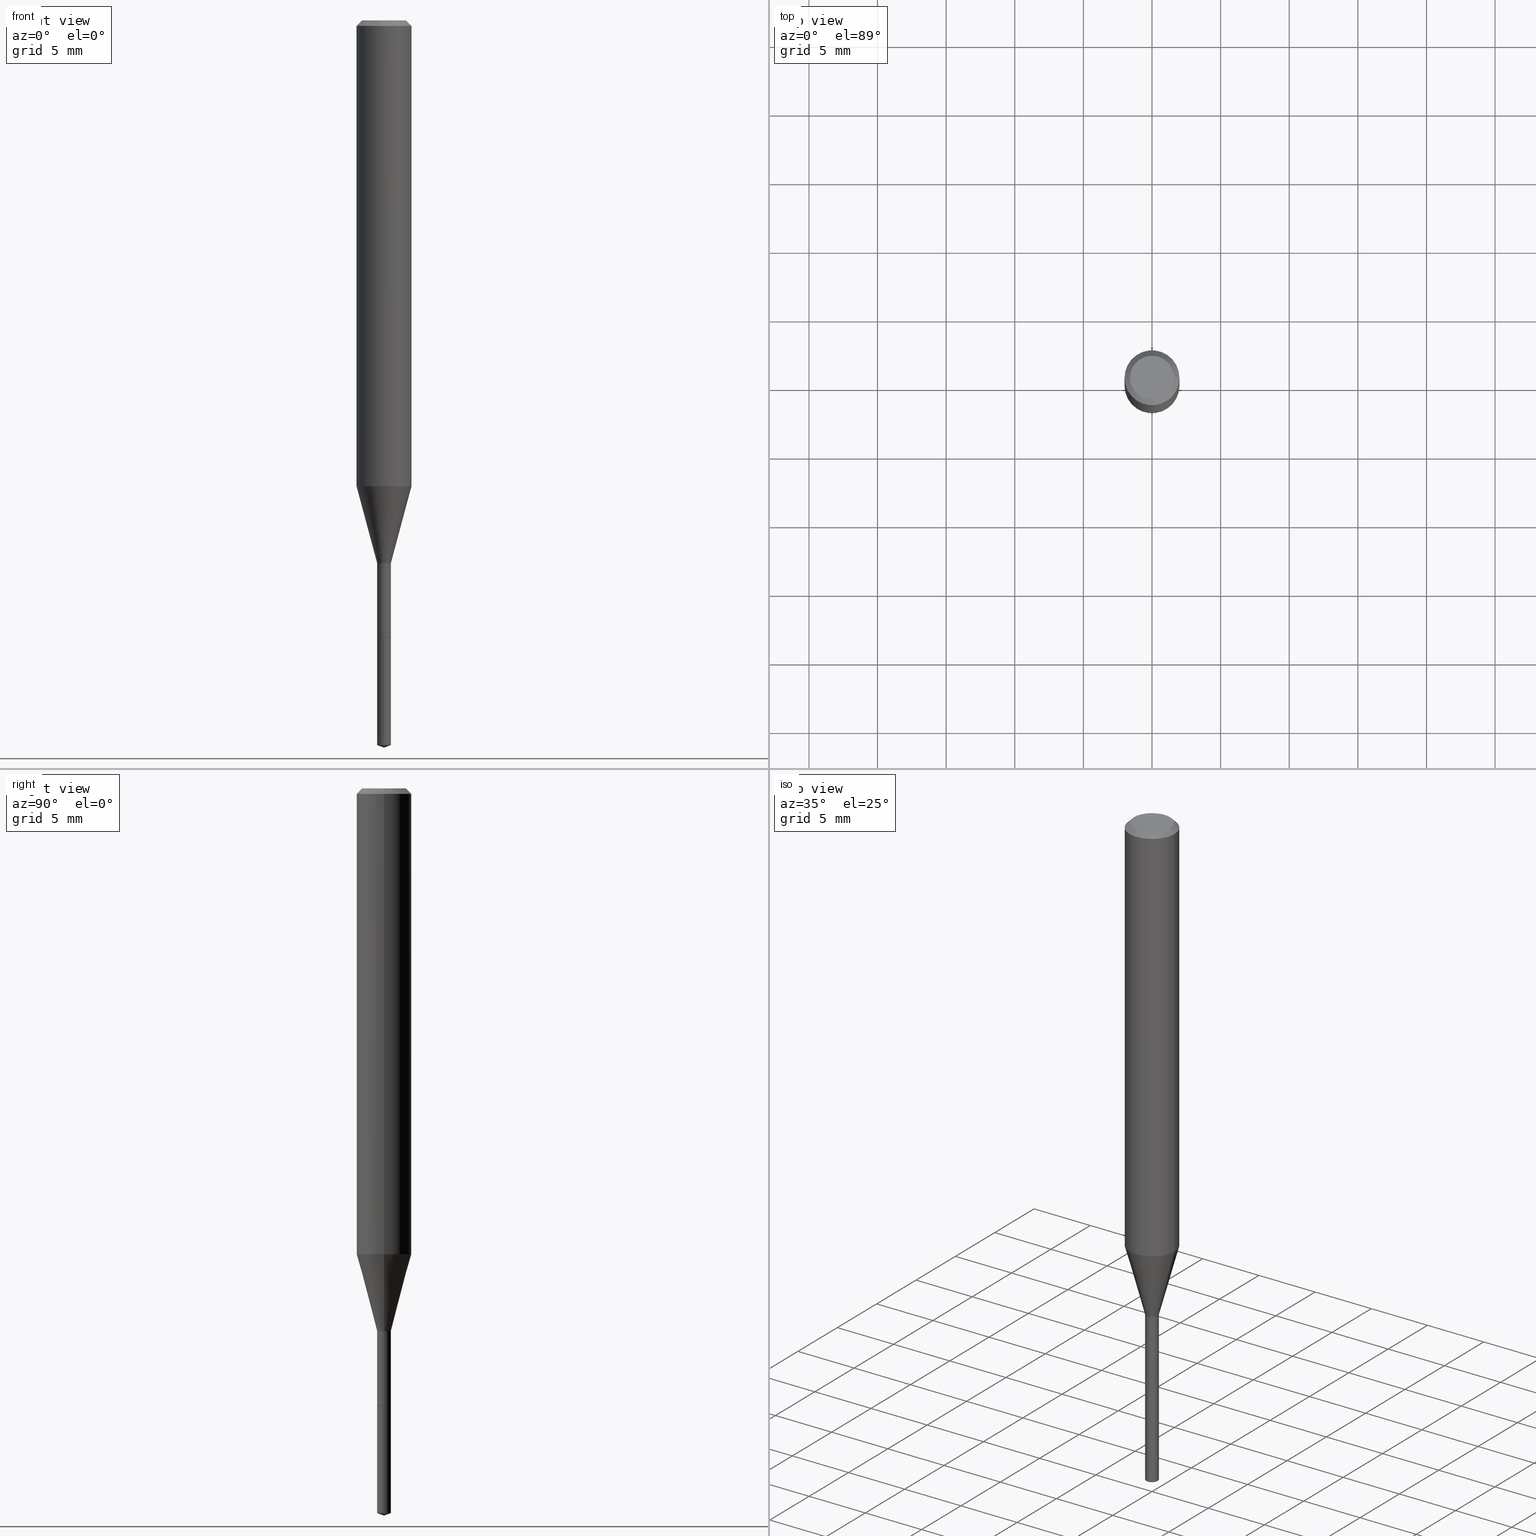
[diagram: canonical four-view strip — front | top / right | iso, engineering-drawing reading convention]
A machine part, canonical four-view strip (front | top / right | iso — engineering-drawing reading convention). The complete STEP part file that produces these views, byte-faithful:
ISO-10303-21;
HEADER;
FILE_DESCRIPTION (( 'STEP AP203' ),
    '1' );
FILE_NAME ('06000.STEP',
    '2024-04-23T18:59:22',
    ( '' ),
    ( '' ),
    'SwSTEP 2.0',
    'SolidWorks 2023',
    '' );
FILE_SCHEMA (( 'CONFIG_CONTROL_DESIGN' ));
ENDSEC;

DATA;
#1 = VERTEX_POINT ( 'NONE', #255 ) ;
#2 = DIRECTION ( 'NONE',  ( 1.000000000000000000, -6.982962677686267499E-15, 4.876176775795935232E-29 ) ) ;
#3 = DIRECTION ( 'NONE',  ( -2.447544919143617491E-29, 3.488508226921589715E-15, 1.000000000000000000 ) ) ;
#4 = ORIENTED_EDGE ( 'NONE', *, *, #393, .F. ) ;
#5 = ADVANCED_FACE ( 'NONE', ( #67 ), #80, .F. ) ;
#6 = CARTESIAN_POINT ( 'NONE',  ( 5.085819766665152108E-29, -7.259375082189951371E-15, -2.079429786384956014 ) ) ;
#7 = ORIENTED_EDGE ( 'NONE', *, *, #320, .F. ) ;
#8 = CIRCLE ( 'NONE', #282, 0.01969999999999999876 ) ;
#9 = AXIS2_PLACEMENT_3D ( 'NONE', #178, #222, #419 ) ;
#10 = FACE_OUTER_BOUND ( 'NONE', #39, .T. ) ;
#11 = AXIS2_PLACEMENT_3D ( 'NONE', #40, #3, #82 ) ;
#12 = CARTESIAN_POINT ( 'NONE',  ( 3.807839478110876143E-29, -5.436585592712660984E-15, -1.557099999999999929 ) ) ;
#13 = VERTEX_POINT ( 'NONE', #350 ) ;
#14 = EDGE_CURVE ( 'NONE', #76, #116, #377, .T. ) ;
#15 = CARTESIAN_POINT ( 'NONE',  ( 5.085819766665152108E-29, -7.259375082189951371E-15, -2.079429786384956014 ) ) ;
#16 = EDGE_LOOP ( 'NONE', ( #398, #471, #380, #194 ) ) ;
#17 = VECTOR ( 'NONE', #316, 39.37007874015748854 ) ;
#18 = CC_DESIGN_PERSON_AND_ORGANIZATION_ASSIGNMENT ( #439, #481, ( #440 ) ) ;
#19 = ORIENTED_EDGE ( 'NONE', *, *, #303, .T. ) ;
#20 =( CONVERSION_BASED_UNIT ( 'INCH', #244 ) LENGTH_UNIT ( ) NAMED_UNIT ( #322 ) );
#21 = ORIENTED_EDGE ( 'NONE', *, *, #154, .T. ) ;
#22 = AXIS2_PLACEMENT_3D ( 'NONE', #12, #351, #190 ) ;
#23 = LINE ( 'NONE', #165, #473 ) ;
#24 = CYLINDRICAL_SURFACE ( 'NONE', #147, 0.01969999999999999876 ) ;
#25 = PERSON_AND_ORGANIZATION_ROLE ( 'design_owner' ) ;
#26 = DIRECTION ( 'NONE',  ( -2.445468806185136597E-29, 3.491481338843145583E-15, 1.000000000000000000 ) ) ;
#27 = CIRCLE ( 'NONE', #438, 0.01969999999999999876 ) ;
#28 = APPROVAL_DATE_TIME ( #478, #238 ) ;
#29 = DIRECTION ( 'NONE',  ( 1.000000000000000000, -6.982962677686267499E-15, 0.000000000000000000 ) ) ;
#30 = DIRECTION ( 'NONE',  ( -6.982962677686265133E-15, -1.000000000000000000, 0.000000000000000000 ) ) ;
#31 = ORIENTED_EDGE ( 'NONE', *, *, #235, .F. ) ;
#32 = CARTESIAN_POINT ( 'NONE',  ( 3.851613369741614799E-31, -5.499083108677989540E-17, -0.01575000000000010072 ) ) ;
#33 = EDGE_CURVE ( 'NONE', #388, #144, #487, .T. ) ;
#34 = AXIS2_PLACEMENT_3D ( 'NONE', #330, #443, #293 ) ;
#35 = DIRECTION ( 'NONE',  ( -2.445468806185136877E-29, 3.491481338843145188E-15, 1.000000000000000000 ) ) ;
#36 = DIRECTION ( 'NONE',  ( -2.445468806185136597E-29, 3.491481338843145583E-15, 1.000000000000000000 ) ) ;
#37 = DESIGN_CONTEXT ( 'detailed design', #411, 'design' ) ;
#38 = ADVANCED_FACE ( 'NONE', ( #142 ), #221, .T. ) ;
#39 = EDGE_LOOP ( 'NONE', ( #394, #51, #429, #299 ) ) ;
#40 = CARTESIAN_POINT ( 'NONE',  ( 4.332392537037587642E-29, -6.185508339894515992E-15, -1.771599999999999842 ) ) ;
#41 = EDGE_LOOP ( 'NONE', ( #83, #89, #121, #87 ) ) ;
#42 = DIRECTION ( 'NONE',  ( 1.000000000000000000, -6.982962677686253300E-15, 0.000000000000000000 ) ) ;
#43 = AXIS2_PLACEMENT_3D ( 'NONE', #6, #355, #81 ) ;
#44 = CARTESIAN_POINT ( 'NONE',  ( -0.01969999999999997101, -5.670197177024139216E-15, -1.557099999999999929 ) ) ;
#45 = ORIENTED_EDGE ( 'NONE', *, *, #386, .T. ) ;
#46 = DIRECTION ( 'NONE',  ( 1.000000000000000000, -6.982962677686253300E-15, 0.000000000000000000 ) ) ;
#47 = EDGE_LOOP ( 'NONE', ( #357, #466, #103, #7 ) ) ;
#48 = VERTEX_POINT ( 'NONE', #281 ) ;
#49 = ORIENTED_EDGE ( 'NONE', *, *, #33, .F. ) ;
#50 = DIRECTION ( 'NONE',  ( -6.982962677686265133E-15, -1.000000000000000000, 0.000000000000000000 ) ) ;
#51 = ORIENTED_EDGE ( 'NONE', *, *, #320, .T. ) ;
#52 = FACE_OUTER_BOUND ( 'NONE', #47, .T. ) ;
#53 = DIRECTION ( 'NONE',  ( -2.445468806185136597E-29, 3.491481338843145583E-15, 1.000000000000000000 ) ) ;
#54 = VECTOR ( 'NONE', #228, 39.37007874015748143 ) ;
#55 = AXIS2_PLACEMENT_3D ( 'NONE', #401, #404, #295 ) ;
#56 = CARTESIAN_POINT ( 'NONE',  ( 4.713871149261278955E-47, -6.730158695841834933E-33, -1.927594061857933439E-18 ) ) ;
#57 = CARTESIAN_POINT ( 'NONE',  ( 5.099691144850582982E-29, -7.289655596455045472E-15, -2.086599999999999788 ) ) ;
#58 = DATE_TIME_ROLE ( 'creation_date' ) ;
#59 = DIRECTION ( 'NONE',  ( 1.000000000000000000, -6.982962677686288799E-15, 0.000000000000000000 ) ) ;
#60 = PERSON_AND_ORGANIZATION ( #127, #284 ) ;
#61 = PRODUCT ( '06000', '06000', '', ( #63 ) ) ;
#62 = EDGE_CURVE ( 'NONE', #156, #122, #27, .T. ) ;
#63 = MECHANICAL_CONTEXT ( 'NONE', #389, 'mechanical' ) ;
#64 = CARTESIAN_POINT ( 'NONE',  ( -9.125666700018876655E-28, 1.300584551482153368E-13, 37.28347874015748431 ) ) ;
#65 = CIRCLE ( 'NONE', #118, 0.01969999999999999876 ) ;
#66 = SECURITY_CLASSIFICATION_LEVEL ( 'unclassified' ) ;
#67 = FACE_OUTER_BOUND ( 'NONE', #435, .T. ) ;
#68 = PLANE ( 'NONE',  #77 ) ;
#69 = CARTESIAN_POINT ( 'NONE',  ( 3.807839478110876143E-29, -5.436585592712660984E-15, -1.557099999999999929 ) ) ;
#70 = SHAPE_DEFINITION_REPRESENTATION ( #409, #340 ) ;
#71 = DIRECTION ( 'NONE',  ( 1.000000000000000000, -6.982962677686265922E-15, 4.876176775795935793E-29 ) ) ;
#72 = FACE_OUTER_BOUND ( 'NONE', #358, .T. ) ;
#73 = DIRECTION ( 'NONE',  ( -0.7071067811866199593, 7.493145998870616062E-15, 0.7071067811864750752 ) ) ;
#74 = FACE_OUTER_BOUND ( 'NONE', #41, .T. ) ;
#75 = EDGE_CURVE ( 'NONE', #160, #183, #274, .T. ) ;
#76 = VERTEX_POINT ( 'NONE', #472 ) ;
#77 = AXIS2_PLACEMENT_3D ( 'NONE', #216, #232, #467 ) ;
#78 = CC_DESIGN_APPROVAL ( #368, ( #440 ) ) ;
#79 = CARTESIAN_POINT ( 'NONE',  ( 9.427742298522557911E-47, -1.346031739168366987E-32, -3.855188123715866879E-18 ) ) ;
#80 = PLANE ( 'NONE',  #189 ) ;
#81 = DIRECTION ( 'NONE',  ( -6.982962677686265133E-15, -1.000000000000000000, 0.000000000000000000 ) ) ;
#82 = DIRECTION ( 'NONE',  ( -6.982962677686265133E-15, -1.000000000000000000, 0.000000000000000000 ) ) ;
#83 = ORIENTED_EDGE ( 'NONE', *, *, #161, .T. ) ;
#84 = CONICAL_SURFACE ( 'NONE', #105, 108.1684023407386519, 1.221730476396047038 ) ;
#85 = AXIS2_PLACEMENT_3D ( 'NONE', #371, #26, #261 ) ;
#86 = CC_DESIGN_APPROVAL ( #238, ( #269 ) ) ;
#87 = ORIENTED_EDGE ( 'NONE', *, *, #176, .F. ) ;
#88 = ORIENTED_EDGE ( 'NONE', *, *, #253, .F. ) ;
#89 = ORIENTED_EDGE ( 'NONE', *, *, #393, .T. ) ;
#90 = ADVANCED_FACE ( 'NONE', ( #125 ), #84, .T. ) ;
#91 = ORIENTED_EDGE ( 'NONE', *, *, #139, .T. ) ;
#92 = CIRCLE ( 'NONE', #301, 0.01919999999999999485 ) ;
#93 = CARTESIAN_POINT ( 'NONE',  ( 4.332392537037587642E-29, -6.185508339894515992E-15, -1.771599999999999842 ) ) ;
#94 = DIRECTION ( 'NONE',  ( -2.447544919143617491E-29, 3.488508226921589715E-15, 1.000000000000000000 ) ) ;
#95 = AXIS2_PLACEMENT_3D ( 'NONE', #441, #99, #59 ) ;
#96 = LOCAL_TIME ( 14, 59, 22.00000000000000000, #414 ) ;
#97 = PERSON_AND_ORGANIZATION ( #127, #284 ) ;
#98 = ADVANCED_FACE ( 'NONE', ( #52 ), #424, .T. ) ;
#99 = DIRECTION ( 'NONE',  ( -2.445468806185136597E-29, 3.491481338843145583E-15, 1.000000000000000000 ) ) ;
#100 = EDGE_CURVE ( 'NONE', #183, #158, #8, .T. ) ;
#101 = PERSON_AND_ORGANIZATION ( #127, #284 ) ;
#102 = DIRECTION ( 'NONE',  ( -2.447544919143617491E-29, 3.488508226921589715E-15, 1.000000000000000000 ) ) ;
#103 = ORIENTED_EDGE ( 'NONE', *, *, #253, .T. ) ;
#104 = DIRECTION ( 'NONE',  ( 1.000000000000000000, -6.982962677686265922E-15, 4.875905316334701673E-29 ) ) ;
#105 = AXIS2_PLACEMENT_3D ( 'NONE', #286, #243, #399 ) ;
#106 = CARTESIAN_POINT ( 'NONE',  ( 0.06300000000000000044, -5.137332111354473202E-16, -3.855188123712532709E-18 ) ) ;
#107 = CARTESIAN_POINT ( 'NONE',  ( 4.332392537037587642E-29, -6.185508339894515992E-15, -1.771599999999999842 ) ) ;
#108 = ADVANCED_FACE ( 'NONE', ( #318 ), #338, .T. ) ;
#109 = CARTESIAN_POINT ( 'NONE',  ( 1.399769189447829919E-16, 0.01969999999999381274, -1.771599999999999842 ) ) ;
#110 = CARTESIAN_POINT ( 'NONE',  ( 3.268912931271767659E-29, -4.667141314160914791E-15, -1.336722399813057072 ) ) ;
#111 = ORIENTED_EDGE ( 'NONE', *, *, #333, .F. ) ;
#112 = VECTOR ( 'NONE', #305, 39.37007874015748143 ) ;
#113 = CARTESIAN_POINT ( 'NONE',  ( 0.07875000000000008382, -5.499083108677941345E-16, 3.839989210939303220E-30 ) ) ;
#114 = VERTEX_POINT ( 'NONE', #106 ) ;
#115 = CARTESIAN_POINT ( 'NONE',  ( 0.01969999999999999876, -6.321326963975514491E-15, -1.771099999999999897 ) ) ;
#116 = VERTEX_POINT ( 'NONE', #256 ) ;
#117 = EDGE_LOOP ( 'NONE', ( #418, #396 ) ) ;
#118 = AXIS2_PLACEMENT_3D ( 'NONE', #462, #311, #450 ) ;
#119 = ORIENTED_EDGE ( 'NONE', *, *, #139, .F. ) ;
#120 = CC_DESIGN_DATE_AND_TIME_ASSIGNMENT ( #373, #58, ( #269 ) ) ;
#121 = ORIENTED_EDGE ( 'NONE', *, *, #420, .F. ) ;
#122 = VERTEX_POINT ( 'NONE', #211 ) ;
#123 = VECTOR ( 'NONE', #205, 39.37007874015748854 ) ;
#124 = ORIENTED_EDGE ( 'NONE', *, *, #452, .T. ) ;
#125 = FACE_OUTER_BOUND ( 'NONE', #227, .T. ) ;
#126 = CC_DESIGN_DATE_AND_TIME_ASSIGNMENT ( #170, #175, ( #171 ) ) ;
#127 = PERSON ( 'UNSPECIFIED', 'UNSPECIFIED', 'UNSPECIFIED', ('UNSPECIFIED'), ('UNSPECIFIED'), ('UNSPECIFIED') ) ;
#128 = FACE_OUTER_BOUND ( 'NONE', #16, .T. ) ;
#129 = APPROVAL_ROLE ( '' ) ;
#130 = FACE_OUTER_BOUND ( 'NONE', #483, .T. ) ;
#131 = CIRCLE ( 'NONE', #138, 0.01969999999999999876 ) ;
#132 = PERSON_AND_ORGANIZATION ( #127, #284 ) ;
#133 = DIRECTION ( 'NONE',  ( -2.445468806185136597E-29, 3.491481338843145583E-15, 1.000000000000000000 ) ) ;
#134 = PERSON_AND_ORGANIZATION ( #127, #284 ) ;
#135 = LINE ( 'NONE', #174, #353 ) ;
#136 = DIRECTION ( 'NONE',  ( -0.7071067811865455743, 2.468850131082236945E-15, -0.7071067811865493491 ) ) ;
#137 = CIRCLE ( 'NONE', #327, 0.07875000000000001443 ) ;
#138 = AXIS2_PLACEMENT_3D ( 'NONE', #296, #451, #484 ) ;
#139 = EDGE_CURVE ( 'NONE', #1, #13, #137, .T. ) ;
#140 = ORIENTED_EDGE ( 'NONE', *, *, #345, .F. ) ;
#141 = CYLINDRICAL_SURFACE ( 'NONE', #364, 0.07875000000000008382 ) ;
#142 = FACE_OUTER_BOUND ( 'NONE', #324, .T. ) ;
#143 = CYLINDRICAL_SURFACE ( 'NONE', #200, 0.01969999999999998488 ) ;
#144 = VERTEX_POINT ( 'NONE', #446 ) ;
#145 = ORIENTED_EDGE ( 'NONE', *, *, #184, .T. ) ;
#146 = LINE ( 'NONE', #113, #257 ) ;
#147 = AXIS2_PLACEMENT_3D ( 'NONE', #250, #94, #30 ) ;
#148 = DIRECTION ( 'NONE',  ( 1.000000000000000000, -6.982962677686278543E-15, 0.000000000000000000 ) ) ;
#149 = VERTEX_POINT ( 'NONE', #202 ) ;
#150 = CARTESIAN_POINT ( 'NONE',  ( 0.01919999999999999485, -6.319581223306092199E-15, -1.771599999999999842 ) ) ;
#151 = EDGE_LOOP ( 'NONE', ( #31, #456, #461, #140 ) ) ;
#152 = ORIENTED_EDGE ( 'NONE', *, *, #276, .F. ) ;
#153 = DIRECTION ( 'NONE',  ( -6.982962677686265133E-15, -1.000000000000000000, 0.000000000000000000 ) ) ;
#154 = EDGE_CURVE ( 'NONE', #116, #310, #289, .T. ) ;
#155 = AXIS2_PLACEMENT_3D ( 'NONE', #265, #36, #148 ) ;
#156 = VERTEX_POINT ( 'NONE', #413 ) ;
#157 = PLANE ( 'NONE',  #479 ) ;
#158 = VERTEX_POINT ( 'NONE', #405 ) ;
#159 = DIRECTION ( 'NONE',  ( 6.676917655468006783E-15, 0.9396926207859149782, 0.3420201433256500612 ) ) ;
#160 = VERTEX_POINT ( 'NONE', #169 ) ;
#161 = EDGE_CURVE ( 'NONE', #144, #310, #391, .T. ) ;
#162 = VECTOR ( 'NONE', #35, 39.37007874015748143 ) ;
#163 = AXIS2_PLACEMENT_3D ( 'NONE', #387, #453, #42 ) ;
#164 =( NAMED_UNIT ( * ) PLANE_ANGLE_UNIT ( ) SI_UNIT ( $, .RADIAN. ) );
#165 = CARTESIAN_POINT ( 'NONE',  ( -0.07875000000000008382, 5.595524044110794920E-16, -3.873661383575742696E-30 ) ) ;
#166 = DIRECTION ( 'NONE',  ( 0.2588190451025206840, 1.565188264969626504E-15, 0.9659258262890682012 ) ) ;
#167 = APPROVAL_DATE_TIME ( #332, #368 ) ;
#168 = EDGE_CURVE ( 'NONE', #114, #48, #486, .T. ) ;
#169 = CARTESIAN_POINT ( 'NONE',  ( 5.107047228285072151E-29, -7.279121266294588201E-15, -2.086599999999999788 ) ) ;
#170 = DATE_AND_TIME ( #447, #96 ) ;
#171 = SECURITY_CLASSIFICATION ( '', '', #66 ) ;
#172 = COORDINATED_UNIVERSAL_TIME_OFFSET ( 5, 0, .BEHIND. ) ;
#173 = CARTESIAN_POINT ( 'NONE',  ( -0.01969999999999998488, 1.399769189447396292E-16, -9.690302127802157246E-31 ) ) ;
#174 = CARTESIAN_POINT ( 'NONE',  ( -0.07875000000000001443, 4.949174797810137153E-16, -0.01575000000000010072 ) ) ;
#175 = DATE_TIME_ROLE ( 'classification_date' ) ;
#176 = EDGE_CURVE ( 'NONE', #144, #149, #297, .T. ) ;
#177 = CARTESIAN_POINT ( 'NONE',  ( -0.01919999999999999485, -6.049084134628576793E-15, -1.771599999999999842 ) ) ;
#178 = CARTESIAN_POINT ( 'NONE',  ( 3.851613369741614799E-31, -5.499083108677989540E-17, -0.01575000000000010072 ) ) ;
#179 = VECTOR ( 'NONE', #159, 39.37007874015748854 ) ;
#180 = CIRCLE ( 'NONE', #9, 0.07875000000000001443 ) ;
#181 = CARTESIAN_POINT ( 'NONE',  ( 0.000000000000000000, 0.000000000000000000, 0.000000000000000000 ) ) ;
#182 = CARTESIAN_POINT ( 'NONE',  ( 0.000000000000000000, 0.000000000000000000, 0.000000000000000000 ) ) ;
#183 = VERTEX_POINT ( 'NONE', #410 ) ;
#184 = EDGE_CURVE ( 'NONE', #349, #76, #246, .T. ) ;
#185 = DIRECTION ( 'NONE',  ( 1.000000000000000000, -6.982962677686267499E-15, 4.876176775795935793E-29 ) ) ;
#186 = ORIENTED_EDGE ( 'NONE', *, *, #345, .T. ) ;
#187 = ORIENTED_EDGE ( 'NONE', *, *, #168, .T. ) ;
#188 = LINE ( 'NONE', #109, #112 ) ;
#189 = AXIS2_PLACEMENT_3D ( 'NONE', #107, #375, #71 ) ;
#190 = DIRECTION ( 'NONE',  ( 1.000000000000000000, -6.982962677686288799E-15, 0.000000000000000000 ) ) ;
#191 = ORIENTED_EDGE ( 'NONE', *, *, #176, .T. ) ;
#192 = CIRCLE ( 'NONE', #43, 0.01969999999999999876 ) ;
#193 = LOCAL_TIME ( 14, 59, 22.00000000000000000, #298 ) ;
#194 = ORIENTED_EDGE ( 'NONE', *, *, #62, .F. ) ;
#195 = CARTESIAN_POINT ( 'NONE',  ( 5.107111732453633289E-29, -7.279121266294588201E-15, -2.086599999999999788 ) ) ;
#196 = ADVANCED_FACE ( 'NONE', ( #128 ), #24, .T. ) ;
#197 = EDGE_LOOP ( 'NONE', ( #145, #325, #455, #88 ) ) ;
#198 = DIRECTION ( 'NONE',  ( -1.000000000000000000, 6.982962677686267499E-15, 0.000000000000000000 ) ) ;
#199 = AXIS2_PLACEMENT_3D ( 'NONE', #69, #482, #335 ) ;
#200 = AXIS2_PLACEMENT_3D ( 'NONE', #182, #308, #185 ) ;
#201 = ADVANCED_FACE ( 'NONE', ( #485 ), #213, .T. ) ;
#202 = CARTESIAN_POINT ( 'NONE',  ( 0.07875000000000015321, -5.217049625028709714E-15, -1.336722399813057072 ) ) ;
#203 = CC_DESIGN_SECURITY_CLASSIFICATION ( #171, ( #440 ) ) ;
#204 = FACE_OUTER_BOUND ( 'NONE', #469, .T. ) ;
#205 = DIRECTION ( 'NONE',  ( -6.561838499445237928E-15, -0.9396926207859126468, 0.3420201433256566115 ) ) ;
#206 = CC_DESIGN_PERSON_AND_ORGANIZATION_ASSIGNMENT ( #101, #249, ( #269 ) ) ;
#207 = COORDINATED_UNIVERSAL_TIME_OFFSET ( 5, 0, .BEHIND. ) ;
#208 = DIRECTION ( 'NONE',  ( -2.445468806185136597E-29, 3.491481338843145583E-15, 1.000000000000000000 ) ) ;
#209 = APPROVAL_ROLE ( '' ) ;
#210 = AXIS2_PLACEMENT_3D ( 'NONE', #93, #245, #46 ) ;
#211 = CARTESIAN_POINT ( 'NONE',  ( -1.375643647503760982E-16, -0.01970000000000618132, -1.771599999999999842 ) ) ;
#212 = CONICAL_SURFACE ( 'NONE', #22, 0.01969999999999997101, 0.2617993877991494078 ) ;
#213 = CONICAL_SURFACE ( 'NONE', #392, 108.1684023407386519, 1.221730476396047038 ) ;
#214 = LOCAL_TIME ( 14, 59, 22.00000000000000000, #207 ) ;
#215 = COORDINATED_UNIVERSAL_TIME_OFFSET ( 5, 0, .BEHIND. ) ;
#216 = CARTESIAN_POINT ( 'NONE',  ( 4.332392537037587642E-29, -6.185508339894515992E-15, -1.771599999999999842 ) ) ;
#217 = EDGE_CURVE ( 'NONE', #48, #13, #135, .T. ) ;
#218 = CARTESIAN_POINT ( 'NONE',  ( 0.01969999999999997101, -5.574149957463080987E-15, -1.557099999999999929 ) ) ;
#219 = ORIENTED_EDGE ( 'NONE', *, *, #168, .F. ) ;
#220 = CARTESIAN_POINT ( 'NONE',  ( -0.07875000000000015321, -4.107588909749834411E-15, -1.336722399813057072 ) ) ;
#221 = CYLINDRICAL_SURFACE ( 'NONE', #240, 0.01969999999999998488 ) ;
#222 = DIRECTION ( 'NONE',  ( -2.445468806185136597E-29, 3.491481338843145583E-15, 1.000000000000000000 ) ) ;
#223 = EDGE_CURVE ( 'NONE', #310, #144, #319, .T. ) ;
#224 = VECTOR ( 'NONE', #166, 39.37007874015748854 ) ;
#225 = AXIS2_PLACEMENT_3D ( 'NONE', #365, #477, #300 ) ;
#226 = CC_DESIGN_APPROVAL ( #278, ( #171 ) ) ;
#227 = EDGE_LOOP ( 'NONE', ( #362, #468, #321 ) ) ;
#228 = DIRECTION ( 'NONE',  ( -2.447544919143617491E-29, 3.488508226921589321E-15, 1.000000000000000000 ) ) ;
#229 = EDGE_CURVE ( 'NONE', #76, #349, #92, .T. ) ;
#230 = DIRECTION ( 'NONE',  ( -1.000000000000000000, 6.982962677686267499E-15, 0.000000000000000000 ) ) ;
#231 = EDGE_LOOP ( 'NONE', ( #45, #19, #266, #356 ) ) ;
#232 = DIRECTION ( 'NONE',  ( 2.447544919143617491E-29, -3.488508226921589321E-15, -1.000000000000000000 ) ) ;
#233 = DIRECTION ( 'NONE',  ( 1.000000000000000000, -6.982962677686272233E-15, 0.000000000000000000 ) ) ;
#234 = AXIS2_PLACEMENT_3D ( 'NONE', #110, #258, #233 ) ;
#235 = EDGE_CURVE ( 'NONE', #430, #13, #23, .T. ) ;
#236 = EDGE_LOOP ( 'NONE', ( #268, #314, #237 ) ) ;
#237 = ORIENTED_EDGE ( 'NONE', *, *, #100, .F. ) ;
#238 = APPROVAL ( #290, 'UNSPECIFIED' ) ;
#239 = CARTESIAN_POINT ( 'NONE',  ( 3.851613369741614799E-31, -5.499083108677989540E-17, -0.01575000000000010072 ) ) ;
#240 = AXIS2_PLACEMENT_3D ( 'NONE', #181, #306, #397 ) ;
#241 = CONICAL_SURFACE ( 'NONE', #328, 0.07875000000000001443, 0.7853981633974456145 ) ;
#242 = EDGE_LOOP ( 'NONE', ( #219, #347, #91, #273 ) ) ;
#243 = DIRECTION ( 'NONE',  ( -2.447544919143617491E-29, 3.488508226921589715E-15, 1.000000000000000000 ) ) ;
#244 = LENGTH_MEASURE_WITH_UNIT ( LENGTH_MEASURE( 0.02539999999999999897 ), #475 );
#245 = DIRECTION ( 'NONE',  ( -2.445468806185136597E-29, 3.491481338843145583E-15, 1.000000000000000000 ) ) ;
#246 = CIRCLE ( 'NONE', #464, 0.01919999999999999485 ) ;
#247 = DIRECTION ( 'NONE',  ( 0.7071067811866199593, -2.468850131083015945E-15, 0.7071067811864750752 ) ) ;
#248 = CALENDAR_DATE ( 2024, 23, 4 ) ;
#249 = PERSON_AND_ORGANIZATION_ROLE ( 'creator' ) ;
#250 = CARTESIAN_POINT ( 'NONE',  ( 4.332392537037587642E-29, -6.185508339894515992E-15, -1.771599999999999842 ) ) ;
#251 = CALENDAR_DATE ( 2024, 23, 4 ) ;
#252 = DIRECTION ( 'NONE',  ( -2.445468806185136877E-29, 3.491481338843145188E-15, 1.000000000000000000 ) ) ;
#253 = EDGE_CURVE ( 'NONE', #349, #388, #436, .T. ) ;
#254 = PERSON_AND_ORGANIZATION ( #127, #284 ) ;
#255 = CARTESIAN_POINT ( 'NONE',  ( 0.07875000000000001443, -6.048991419545734691E-16, -0.01575000000000010072 ) ) ;
#256 = CARTESIAN_POINT ( 'NONE',  ( -0.01969999999999999876, -5.670197177024139216E-15, -1.771099999999999897 ) ) ;
#257 = VECTOR ( 'NONE', #378, 39.37007874015748143 ) ;
#258 = DIRECTION ( 'NONE',  ( -2.445468806185136597E-29, 3.491481338843145583E-15, 1.000000000000000000 ) ) ;
#259 = CARTESIAN_POINT ( 'NONE',  ( 0.01969999999999998488, -1.375643647504193623E-16, 9.606068248317986211E-31 ) ) ;
#260 = EDGE_CURVE ( 'NONE', #160, #158, #403, .T. ) ;
#261 = DIRECTION ( 'NONE',  ( 1.000000000000000000, -6.982962677686272233E-15, 0.000000000000000000 ) ) ;
#262 = CARTESIAN_POINT ( 'NONE',  ( 0.000000000000000000, 0.000000000000000000, 0.000000000000000000 ) ) ;
#263 = ADVANCED_FACE ( 'NONE', ( #130 ), #272, .T. ) ;
#264 = VECTOR ( 'NONE', #247, 39.37007874015748143 ) ;
#265 = CARTESIAN_POINT ( 'NONE',  ( 4.331169802634495401E-29, -6.183762599225095277E-15, -1.771099999999999897 ) ) ;
#266 = ORIENTED_EDGE ( 'NONE', *, *, #294, .F. ) ;
#267 = FACE_OUTER_BOUND ( 'NONE', #242, .T. ) ;
#268 = ORIENTED_EDGE ( 'NONE', *, *, #75, .F. ) ;
#269 = PRODUCT_DEFINITION ( 'UNKNOWN', '', #440, #37 ) ;
#270 = ORIENTED_EDGE ( 'NONE', *, *, #223, .T. ) ;
#271 = AXIS2_PLACEMENT_3D ( 'NONE', #341, #133, #104 ) ;
#272 = CONICAL_SURFACE ( 'NONE', #95, 0.01969999999999997101, 0.2617993877991494078 ) ;
#273 = ORIENTED_EDGE ( 'NONE', *, *, #217, .F. ) ;
#274 = LINE ( 'NONE', #195, #179 ) ;
#275 = APPLICATION_PROTOCOL_DEFINITION ( 'international standard', 'config_control_design', 1994, #389 ) ;
#276 = EDGE_CURVE ( 'NONE', #430, #149, #425, .T. ) ;
#277 = ORIENTED_EDGE ( 'NONE', *, *, #315, .F. ) ;
#278 = APPROVAL ( #406, 'UNSPECIFIED' ) ;
#279 = DIRECTION ( 'NONE',  ( 2.445468806185136597E-29, -3.491481338843145583E-15, -1.000000000000000000 ) ) ;
#280 = ORIENTED_EDGE ( 'NONE', *, *, #235, .T. ) ;
#281 = CARTESIAN_POINT ( 'NONE',  ( -0.06300000000000000044, 4.674220642376242452E-16, -3.855188123719040041E-18 ) ) ;
#282 = AXIS2_PLACEMENT_3D ( 'NONE', #15, #427, #153 ) ;
#283 = FACE_OUTER_BOUND ( 'NONE', #360, .T. ) ;
#284 = ORGANIZATION ( 'UNSPECIFIED', 'UNSPECIFIED', '' ) ;
#285 = ORIENTED_EDGE ( 'NONE', *, *, #161, .F. ) ;
#286 = CARTESIAN_POINT ( 'NONE',  ( -9.125666700018876655E-28, 1.300584551482153368E-13, 37.28347874015748431 ) ) ;
#287 = MANIFOLD_SOLID_BREP ( 'Body-Move/Copy2[1]', #457 ) ;
#288 = CARTESIAN_POINT ( 'NONE',  ( 4.332392537037587642E-29, -6.185508339894515992E-15, -1.771599999999999842 ) ) ;
#289 = LINE ( 'NONE', #173, #381 ) ;
#290 = APPROVAL_STATUS ( 'not_yet_approved' ) ;
#291 = CARTESIAN_POINT ( 'NONE',  ( 0.01919999999999999485, -6.319581223306092199E-15, -1.771599999999999842 ) ) ;
#292 = CALENDAR_DATE ( 2024, 23, 4 ) ;
#293 = DIRECTION ( 'NONE',  ( 1.000000000000000000, -6.982962677686267499E-15, 4.876176775795935232E-29 ) ) ;
#294 = EDGE_CURVE ( 'NONE', #122, #156, #65, .T. ) ;
#295 = DIRECTION ( 'NONE',  ( 1.000000000000000000, 0.000000000000000000, 0.000000000000000000 ) ) ;
#296 = CARTESIAN_POINT ( 'NONE',  ( 4.331169802634495401E-29, -6.183762599225095277E-15, -1.771099999999999897 ) ) ;
#297 = LINE ( 'NONE', #218, #224 ) ;
#298 = COORDINATED_UNIVERSAL_TIME_OFFSET ( 5, 0, .BEHIND. ) ;
#299 = ORIENTED_EDGE ( 'NONE', *, *, #223, .F. ) ;
#300 = DIRECTION ( 'NONE',  ( 1.000000000000000000, -6.982962677686288799E-15, 0.000000000000000000 ) ) ;
#301 = AXIS2_PLACEMENT_3D ( 'NONE', #449, #53, #480 ) ;
#302 = APPROVAL_PERSON_ORGANIZATION ( #445, #238, #209 ) ;
#303 = EDGE_CURVE ( 'NONE', #183, #156, #188, .T. ) ;
#304 = ORIENTED_EDGE ( 'NONE', *, *, #420, .T. ) ;
#305 = DIRECTION ( 'NONE',  ( -2.447544919143617491E-29, 3.488508226921589321E-15, 1.000000000000000000 ) ) ;
#306 = DIRECTION ( 'NONE',  ( -2.445468806185136597E-29, 3.491481338843145583E-15, 1.000000000000000000 ) ) ;
#307 = ADVANCED_FACE ( 'NONE', ( #348 ), #458, .T. ) ;
#308 = DIRECTION ( 'NONE',  ( -2.445468806185136597E-29, 3.491481338843145583E-15, 1.000000000000000000 ) ) ;
#309 = ORIENTED_EDGE ( 'NONE', *, *, #217, .T. ) ;
#310 = VERTEX_POINT ( 'NONE', #44 ) ;
#311 = DIRECTION ( 'NONE',  ( -2.447544919143617491E-29, 3.488508226921589715E-15, 1.000000000000000000 ) ) ;
#312 =( GEOMETRIC_REPRESENTATION_CONTEXT ( 3 ) GLOBAL_UNCERTAINTY_ASSIGNED_CONTEXT ( ( #490 ) ) GLOBAL_UNIT_ASSIGNED_CONTEXT ( ( #20, #164, #434 ) ) REPRESENTATION_CONTEXT ( 'NONE', 'WORKASPACE' ) );
#313 = DIRECTION ( 'NONE',  ( -2.445468806185136597E-29, 3.491481338843145583E-15, 1.000000000000000000 ) ) ;
#314 = ORIENTED_EDGE ( 'NONE', *, *, #260, .T. ) ;
#315 = EDGE_CURVE ( 'NONE', #114, #1, #417, .T. ) ;
#316 = DIRECTION ( 'NONE',  ( -0.2588190451025206840, 5.211531920934545520E-15, 0.9659258262890682012 ) ) ;
#317 = ORIENTED_EDGE ( 'NONE', *, *, #333, .T. ) ;
#318 = FACE_OUTER_BOUND ( 'NONE', #151, .T. ) ;
#319 = CIRCLE ( 'NONE', #225, 0.01969999999999997101 ) ;
#320 = EDGE_CURVE ( 'NONE', #116, #388, #402, .T. ) ;
#321 = ORIENTED_EDGE ( 'NONE', *, *, #386, .F. ) ;
#322 = DIMENSIONAL_EXPONENTS ( 1.000000000000000000, 0.000000000000000000, 0.000000000000000000, 0.000000000000000000, 0.000000000000000000, 0.000000000000000000, 0.000000000000000000 ) ;
#323 = PRODUCT_RELATED_PRODUCT_CATEGORY ( 'detail', '', ( #61 ) ) ;
#324 = EDGE_LOOP ( 'NONE', ( #124, #21, #285, #49 ) ) ;
#325 = ORIENTED_EDGE ( 'NONE', *, *, #14, .T. ) ;
#326 = DIRECTION ( 'NONE',  ( -2.447544919143617491E-29, 3.488508226921589715E-15, 1.000000000000000000 ) ) ;
#327 = AXIS2_PLACEMENT_3D ( 'NONE', #374, #208, #29 ) ;
#328 = AXIS2_PLACEMENT_3D ( 'NONE', #32, #343, #230 ) ;
#329 = ADVANCED_FACE ( 'NONE', ( #74 ), #212, .T. ) ;
#330 = CARTESIAN_POINT ( 'NONE',  ( 0.000000000000000000, 0.000000000000000000, 0.000000000000000000 ) ) ;
#331 = DIRECTION ( 'NONE',  ( 1.000000000000000000, -6.982962677686253300E-15, 0.000000000000000000 ) ) ;
#332 = DATE_AND_TIME ( #337, #354 ) ;
#333 = EDGE_CURVE ( 'NONE', #48, #114, #459, .T. ) ;
#334 = AXIS2_PLACEMENT_3D ( 'NONE', #239, #279, #198 ) ;
#335 = DIRECTION ( 'NONE',  ( 1.000000000000000000, -6.982962677686288799E-15, 0.000000000000000000 ) ) ;
#336 = APPROVAL_PERSON_ORGANIZATION ( #60, #278, #372 ) ;
#337 = CALENDAR_DATE ( 2024, 23, 4 ) ;
#338 = CYLINDRICAL_SURFACE ( 'NONE', #34, 0.07875000000000008382 ) ;
#339 = ORIENTED_EDGE ( 'NONE', *, *, #184, .F. ) ;
#340 = ADVANCED_BREP_SHAPE_REPRESENTATION ( '06000', ( #287, #437, #55 ), #312 ) ;
#341 = CARTESIAN_POINT ( 'NONE',  ( 9.427742298522557911E-47, -1.346031739168366987E-32, -3.855188123715866879E-18 ) ) ;
#342 = PERSON_AND_ORGANIZATION_ROLE ( 'classification_officer' ) ;
#343 = DIRECTION ( 'NONE',  ( 2.445468806185136597E-29, -3.491481338843145583E-15, -1.000000000000000000 ) ) ;
#344 = CONICAL_SURFACE ( 'NONE', #334, 0.07875000000000001443, 0.7853981633974456145 ) ;
#345 = EDGE_CURVE ( 'NONE', #13, #1, #180, .T. ) ;
#346 = DIRECTION ( 'NONE',  ( 1.000000000000000000, -6.982962677686265922E-15, 4.875905316334701673E-29 ) ) ;
#347 = ORIENTED_EDGE ( 'NONE', *, *, #315, .T. ) ;
#348 = FACE_OUTER_BOUND ( 'NONE', #231, .T. ) ;
#349 = VERTEX_POINT ( 'NONE', #150 ) ;
#350 = CARTESIAN_POINT ( 'NONE',  ( -0.07875000000000001443, -1.801513668212767078E-15, -0.01575000000000010072 ) ) ;
#351 = DIRECTION ( 'NONE',  ( -2.445468806185136597E-29, 3.491481338843145583E-15, 1.000000000000000000 ) ) ;
#352 = ADVANCED_FACE ( 'NONE', ( #10 ), #143, .T. ) ;
#353 = VECTOR ( 'NONE', #136, 39.37007874015748854 ) ;
#354 = LOCAL_TIME ( 14, 59, 22.00000000000000000, #172 ) ;
#355 = DIRECTION ( 'NONE',  ( -2.447544919143617491E-29, 3.488508226921589715E-15, 1.000000000000000000 ) ) ;
#356 = ORIENTED_EDGE ( 'NONE', *, *, #426, .F. ) ;
#357 = ORIENTED_EDGE ( 'NONE', *, *, #14, .F. ) ;
#358 = EDGE_LOOP ( 'NONE', ( #304, #280, #119, #428 ) ) ;
#359 = CC_DESIGN_PERSON_AND_ORGANIZATION_ASSIGNMENT ( #132, #442, ( #440 ) ) ;
#360 = EDGE_LOOP ( 'NONE', ( #277, #111, #309, #186 ) ) ;
#361 = DIRECTION ( 'NONE',  ( 2.438088387897960049E-29, -3.491481338843145188E-15, -1.000000000000000000 ) ) ;
#362 = ORIENTED_EDGE ( 'NONE', *, *, #260, .F. ) ;
#363 = DIRECTION ( 'NONE',  ( -1.000000000000000000, 6.982962677686265922E-15, -4.876176775795935793E-29 ) ) ;
#364 = AXIS2_PLACEMENT_3D ( 'NONE', #262, #385, #2 ) ;
#365 = CARTESIAN_POINT ( 'NONE',  ( 3.807839478110876143E-29, -5.436585592712660984E-15, -1.557099999999999929 ) ) ;
#366 = DIRECTION ( 'NONE',  ( -2.445468806185136597E-29, 3.491481338843145583E-15, 1.000000000000000000 ) ) ;
#367 = DATE_AND_TIME ( #248, #193 ) ;
#368 = APPROVAL ( #369, 'UNSPECIFIED' ) ;
#369 = APPROVAL_STATUS ( 'not_yet_approved' ) ;
#370 = FACE_OUTER_BOUND ( 'NONE', #117, .T. ) ;
#371 = CARTESIAN_POINT ( 'NONE',  ( 3.268912931271767659E-29, -4.667141314160914791E-15, -1.336722399813057072 ) ) ;
#372 = APPROVAL_ROLE ( '' ) ;
#373 = DATE_AND_TIME ( #251, #465 ) ;
#374 = CARTESIAN_POINT ( 'NONE',  ( 3.851613369741614799E-31, -5.499083108677989540E-17, -0.01575000000000010072 ) ) ;
#375 = DIRECTION ( 'NONE',  ( -2.438088387897960049E-29, 3.491481338843145188E-15, 1.000000000000000000 ) ) ;
#376 = CARTESIAN_POINT ( 'NONE',  ( 4.332392537037587642E-29, -6.185508339894515992E-15, -1.771599999999999842 ) ) ;
#377 = LINE ( 'NONE', #177, #431 ) ;
#378 = DIRECTION ( 'NONE',  ( -2.445468806185136877E-29, 3.491481338843145188E-15, 1.000000000000000000 ) ) ;
#379 = EDGE_CURVE ( 'NONE', #149, #1, #146, .T. ) ;
#380 = ORIENTED_EDGE ( 'NONE', *, *, #426, .T. ) ;
#381 = VECTOR ( 'NONE', #252, 39.37007874015748143 ) ;
#382 = LINE ( 'NONE', #489, #17 ) ;
#383 = VECTOR ( 'NONE', #460, 39.37007874015748854 ) ;
#384 = APPROVAL_PERSON_ORGANIZATION ( #254, #368, #129 ) ;
#385 = DIRECTION ( 'NONE',  ( -2.445468806185136597E-29, 3.491481338843145583E-15, 1.000000000000000000 ) ) ;
#386 = EDGE_CURVE ( 'NONE', #158, #183, #192, .T. ) ;
#387 = CARTESIAN_POINT ( 'NONE',  ( 4.332392537037587642E-29, -6.185508339894515992E-15, -1.771599999999999842 ) ) ;
#388 = VERTEX_POINT ( 'NONE', #115 ) ;
#389 = APPLICATION_CONTEXT ( 'configuration controlled 3d designs of mechanical parts and assemblies' ) ;
#390 = LINE ( 'NONE', #416, #54 ) ;
#391 = CIRCLE ( 'NONE', #199, 0.01969999999999997101 ) ;
#392 = AXIS2_PLACEMENT_3D ( 'NONE', #64, #102, #400 ) ;
#393 = EDGE_CURVE ( 'NONE', #310, #430, #382, .T. ) ;
#394 = ORIENTED_EDGE ( 'NONE', *, *, #154, .F. ) ;
#395 = ADVANCED_FACE ( 'NONE', ( #267 ), #241, .T. ) ;
#396 = ORIENTED_EDGE ( 'NONE', *, *, #62, .T. ) ;
#397 = DIRECTION ( 'NONE',  ( 1.000000000000000000, -6.982962677686267499E-15, 4.876176775795935793E-29 ) ) ;
#398 = ORIENTED_EDGE ( 'NONE', *, *, #303, .F. ) ;
#399 = DIRECTION ( 'NONE',  ( -6.982962677686267499E-15, -1.000000000000000000, 3.475157955500553370E-15 ) ) ;
#400 = DIRECTION ( 'NONE',  ( -6.982962677686267499E-15, -1.000000000000000000, 3.475157955500553370E-15 ) ) ;
#401 = CARTESIAN_POINT ( 'NONE',  ( 0.000000000000000000, 0.000000000000000000, 0.000000000000000000 ) ) ;
#402 = CIRCLE ( 'NONE', #155, 0.01969999999999999876 ) ;
#403 = LINE ( 'NONE', #57, #123 ) ;
#404 = DIRECTION ( 'NONE',  ( 0.000000000000000000, 0.000000000000000000, 1.000000000000000000 ) ) ;
#405 = CARTESIAN_POINT ( 'NONE',  ( -1.375643647503685547E-16, -0.01970000000000725338, -2.079429786384956014 ) ) ;
#406 = APPROVAL_STATUS ( 'not_yet_approved' ) ;
#407 = CC_DESIGN_PERSON_AND_ORGANIZATION_ASSIGNMENT ( #97, #342, ( #171 ) ) ;
#408 = APPLICATION_PROTOCOL_DEFINITION ( 'international standard', 'config_control_design', 1994, #411 ) ;
#409 = PRODUCT_DEFINITION_SHAPE ( 'NONE', 'NONE',  #269 ) ;
#410 = CARTESIAN_POINT ( 'NONE',  ( 1.399769189447905600E-16, 0.01969999999999273374, -2.079429786384956014 ) ) ;
#411 = APPLICATION_CONTEXT ( 'configuration controlled 3d designs of mechanical parts and assemblies' ) ;
#412 = CLOSED_SHELL ( 'NONE', ( #415, #395, #432, #329, #38, #352, #263, #108, #470, #476, #5, #98 ) ) ;
#413 = CARTESIAN_POINT ( 'NONE',  ( 1.399769189447906093E-16, 0.01969999999999381274, -1.771599999999999842 ) ) ;
#414 = COORDINATED_UNIVERSAL_TIME_OFFSET ( 5, 0, .BEHIND. ) ;
#415 = ADVANCED_FACE ( 'NONE', ( #423 ), #488, .T. ) ;
#416 = CARTESIAN_POINT ( 'NONE',  ( -1.375643647503760982E-16, -0.01970000000000618132, -1.771599999999999842 ) ) ;
#417 = LINE ( 'NONE', #422, #383 ) ;
#418 = ORIENTED_EDGE ( 'NONE', *, *, #294, .T. ) ;
#419 = DIRECTION ( 'NONE',  ( 1.000000000000000000, -6.982962677686267499E-15, 0.000000000000000000 ) ) ;
#420 = EDGE_CURVE ( 'NONE', #149, #430, #448, .T. ) ;
#421 = ORIENTED_EDGE ( 'NONE', *, *, #229, .F. ) ;
#422 = CARTESIAN_POINT ( 'NONE',  ( 0.07875000000000001443, -5.952550484112881117E-16, -0.01575000000000010072 ) ) ;
#423 = FACE_OUTER_BOUND ( 'NONE', #197, .T. ) ;
#424 = CONICAL_SURFACE ( 'NONE', #210, 0.01919999999999999485, 0.7853981633975507526 ) ;
#425 = CIRCLE ( 'NONE', #85, 0.07875000000000015321 ) ;
#426 = EDGE_CURVE ( 'NONE', #158, #122, #390, .T. ) ;
#427 = DIRECTION ( 'NONE',  ( -2.447544919143617491E-29, 3.488508226921589715E-15, 1.000000000000000000 ) ) ;
#428 = ORIENTED_EDGE ( 'NONE', *, *, #379, .F. ) ;
#429 = ORIENTED_EDGE ( 'NONE', *, *, #33, .T. ) ;
#430 = VERTEX_POINT ( 'NONE', #220 ) ;
#431 = VECTOR ( 'NONE', #73, 39.37007874015748143 ) ;
#432 = ADVANCED_FACE ( 'NONE', ( #72 ), #141, .T. ) ;
#433 = AXIS2_PLACEMENT_3D ( 'NONE', #79, #313, #346 ) ;
#434 =( NAMED_UNIT ( * ) SI_UNIT ( $, .STERADIAN. ) SOLID_ANGLE_UNIT ( ) );
#435 = EDGE_LOOP ( 'NONE', ( #339, #421 ) ) ;
#436 = LINE ( 'NONE', #291, #264 ) ;
#437 = MANIFOLD_SOLID_BREP ( 'Body-Move/Copy2[2]', #412 ) ;
#438 = AXIS2_PLACEMENT_3D ( 'NONE', #288, #326, #50 ) ;
#439 = PERSON_AND_ORGANIZATION ( #127, #284 ) ;
#440 = PRODUCT_DEFINITION_FORMATION_WITH_SPECIFIED_SOURCE ( 'ANY', '', #61, .NOT_KNOWN. ) ;
#441 = CARTESIAN_POINT ( 'NONE',  ( 3.807839478110876143E-29, -5.436585592712660984E-15, -1.557099999999999929 ) ) ;
#442 = PERSON_AND_ORGANIZATION_ROLE ( 'creator' ) ;
#443 = DIRECTION ( 'NONE',  ( -2.445468806185136597E-29, 3.491481338843145583E-15, 1.000000000000000000 ) ) ;
#444 = APPROVAL_DATE_TIME ( #367, #278 ) ;
#445 = PERSON_AND_ORGANIZATION ( #127, #284 ) ;
#446 = CARTESIAN_POINT ( 'NONE',  ( 0.01969999999999997101, -5.574149957463080987E-15, -1.557099999999999929 ) ) ;
#447 = CALENDAR_DATE ( 2024, 23, 4 ) ;
#448 = CIRCLE ( 'NONE', #234, 0.07875000000000015321 ) ;
#449 = CARTESIAN_POINT ( 'NONE',  ( 4.332392537037587642E-29, -6.185508339894515992E-15, -1.771599999999999842 ) ) ;
#450 = DIRECTION ( 'NONE',  ( -6.982962677686265133E-15, -1.000000000000000000, 0.000000000000000000 ) ) ;
#451 = DIRECTION ( 'NONE',  ( -2.445468806185136597E-29, 3.491481338843145583E-15, 1.000000000000000000 ) ) ;
#452 = EDGE_CURVE ( 'NONE', #388, #116, #131, .T. ) ;
#453 = DIRECTION ( 'NONE',  ( -2.445468806185136597E-29, 3.491481338843145583E-15, 1.000000000000000000 ) ) ;
#454 = ADVANCED_FACE ( 'NONE', ( #370 ), #68, .F. ) ;
#455 = ORIENTED_EDGE ( 'NONE', *, *, #452, .F. ) ;
#456 = ORIENTED_EDGE ( 'NONE', *, *, #276, .T. ) ;
#457 = CLOSED_SHELL ( 'NONE', ( #307, #90, #201, #196, #454 ) ) ;
#458 = CYLINDRICAL_SURFACE ( 'NONE', #11, 0.01969999999999999876 ) ;
#459 = CIRCLE ( 'NONE', #433, 0.06300000000000000044 ) ;
#460 = DIRECTION ( 'NONE',  ( 0.7071067811865455743, -7.319954787623248157E-15, -0.7071067811865493491 ) ) ;
#461 = ORIENTED_EDGE ( 'NONE', *, *, #379, .T. ) ;
#462 = CARTESIAN_POINT ( 'NONE',  ( 4.332392537037587642E-29, -6.185508339894515992E-15, -1.771599999999999842 ) ) ;
#463 = CC_DESIGN_PERSON_AND_ORGANIZATION_ASSIGNMENT ( #134, #25, ( #61 ) ) ;
#464 = AXIS2_PLACEMENT_3D ( 'NONE', #376, #366, #331 ) ;
#465 = LOCAL_TIME ( 14, 59, 22.00000000000000000, #215 ) ;
#466 = ORIENTED_EDGE ( 'NONE', *, *, #229, .T. ) ;
#467 = DIRECTION ( 'NONE',  ( 6.982962677686265922E-15, 1.000000000000000000, -3.488508226921589321E-15 ) ) ;
#468 = ORIENTED_EDGE ( 'NONE', *, *, #75, .T. ) ;
#469 = EDGE_LOOP ( 'NONE', ( #317, #187 ) ) ;
#470 = ADVANCED_FACE ( 'NONE', ( #283 ), #344, .T. ) ;
#471 = ORIENTED_EDGE ( 'NONE', *, *, #100, .T. ) ;
#472 = CARTESIAN_POINT ( 'NONE',  ( -0.01919999999999999485, -6.046434907454465592E-15, -1.771599999999999842 ) ) ;
#473 = VECTOR ( 'NONE', #474, 39.37007874015748143 ) ;
#474 = DIRECTION ( 'NONE',  ( -2.445468806185136877E-29, 3.491481338843145188E-15, 1.000000000000000000 ) ) ;
#475 =( LENGTH_UNIT ( ) NAMED_UNIT ( * ) SI_UNIT ( $, .METRE. ) );
#476 = ADVANCED_FACE ( 'NONE', ( #204 ), #157, .F. ) ;
#477 = DIRECTION ( 'NONE',  ( -2.445468806185136597E-29, 3.491481338843145583E-15, 1.000000000000000000 ) ) ;
#478 = DATE_AND_TIME ( #292, #214 ) ;
#479 = AXIS2_PLACEMENT_3D ( 'NONE', #56, #361, #363 ) ;
#480 = DIRECTION ( 'NONE',  ( 1.000000000000000000, -6.982962677686253300E-15, 0.000000000000000000 ) ) ;
#481 = PERSON_AND_ORGANIZATION_ROLE ( 'design_supplier' ) ;
#482 = DIRECTION ( 'NONE',  ( -2.445468806185136597E-29, 3.491481338843145583E-15, 1.000000000000000000 ) ) ;
#483 = EDGE_LOOP ( 'NONE', ( #4, #270, #191, #152 ) ) ;
#484 = DIRECTION ( 'NONE',  ( 1.000000000000000000, -6.982962677686278543E-15, 0.000000000000000000 ) ) ;
#485 = FACE_OUTER_BOUND ( 'NONE', #236, .T. ) ;
#486 = CIRCLE ( 'NONE', #271, 0.06300000000000000044 ) ;
#487 = LINE ( 'NONE', #259, #162 ) ;
#488 = CONICAL_SURFACE ( 'NONE', #163, 0.01919999999999999485, 0.7853981633975507526 ) ;
#489 = CARTESIAN_POINT ( 'NONE',  ( -0.01969999999999997101, -5.296608673767921675E-15, -1.557099999999999929 ) ) ;
#490 = UNCERTAINTY_MEASURE_WITH_UNIT (LENGTH_MEASURE( 1.000000000000000082E-05 ), #20, 'distance_accuracy_value', 'NONE');
ENDSEC;
END-ISO-10303-21;
